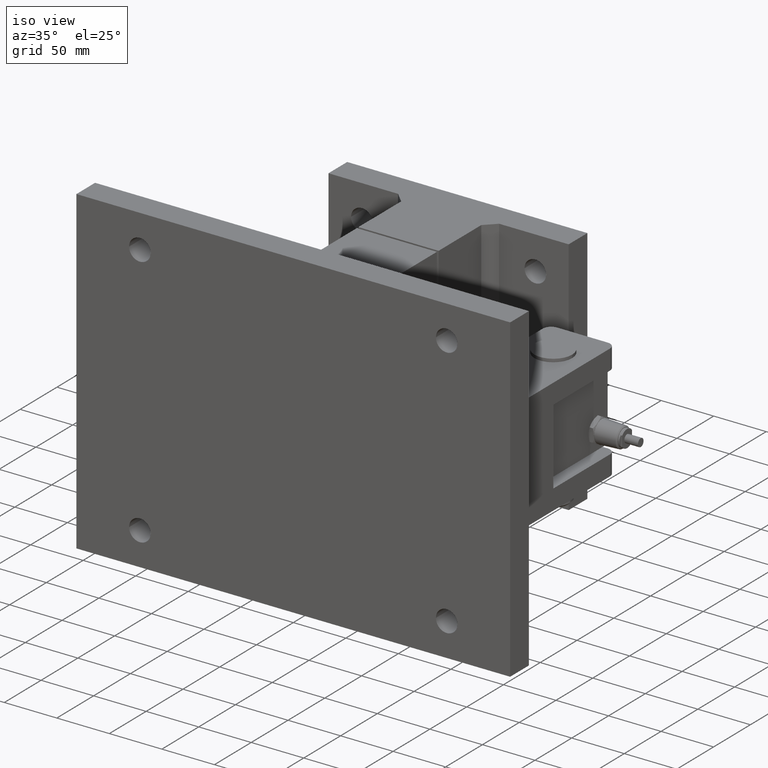
[diagram: clean part render]
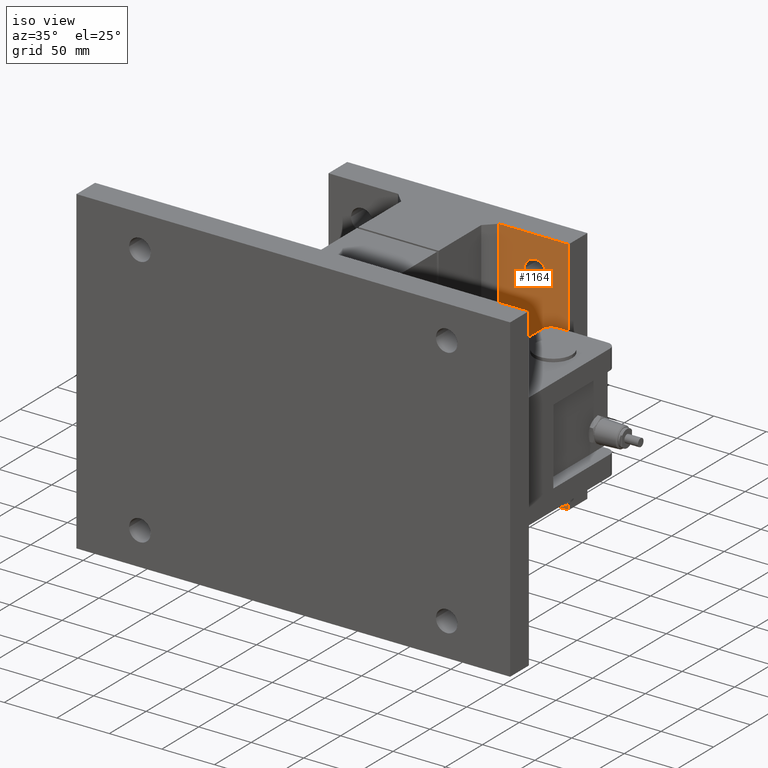
[diagram: same view with one face highlighted and labeled with its STEP entity id]
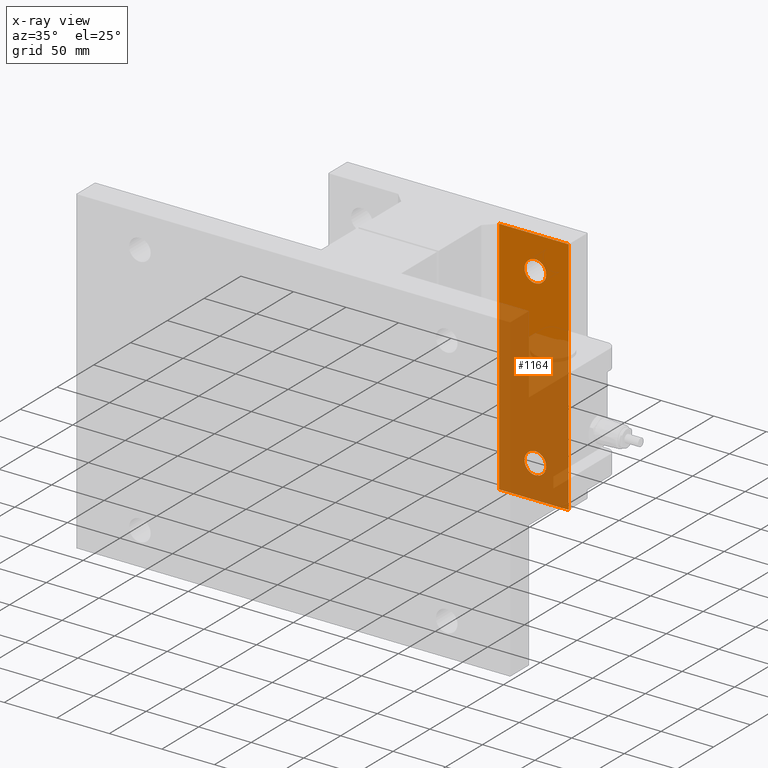
[diagram: x-ray of the same camera — body ghosted, the highlighted face saturated]
A machine part, iso view. The second image highlights one B-rep face of the part: STEP entity #1164.
The next image is the same camera in x-ray: the body ghosted, the highlighted face saturated — about 67% of this face is hidden behind the body in this view.
In plain terms, the highlighted planar face has unit normal (0, -1, 0).
Its self-contained STEP definition (entity closure, byte-faithful):
#245 = DIRECTION ( 'NONE',  ( 1.836970198721029934E-16, -1.000000000000000000, 0.000000000000000000 ) ) ;
#294 = DIRECTION ( 'NONE',  ( 1.000000000000000000, 2.428309327701567798E-16, -6.070773319253919496E-17 ) ) ;
#351 = VERTEX_POINT ( 'NONE', #5319 ) ;
#368 = CARTESIAN_POINT ( 'NONE',  ( 114.2999999999999829, 211.1000000000000227, 114.2999999999999687 ) ) ;
#372 = CARTESIAN_POINT ( 'NONE',  ( 114.3000000000000114, 211.1000000000000227, -114.3000000000000398 ) ) ;
#893 = CARTESIAN_POINT ( 'NONE',  ( 48.09999999999980957, 211.0999999999999943, 114.2999999999999687 ) ) ;
#904 = CARTESIAN_POINT ( 'NONE',  ( -5.276361129539065778E-14, 211.0999999999999943, -1.045924713129057850E-29 ) ) ;
#1055 = DIRECTION ( 'NONE',  ( -1.000000000000000000, -2.428309327701567798E-16, -6.070773319253919496E-17 ) ) ;
#1140 = CIRCLE ( 'NONE', #5781, 10.30000000000000426 ) ;
#1164 = ADVANCED_FACE ( 'NONE', ( #4442, #8587, #7859 ), #4387, .T. ) ;
#1299 = CARTESIAN_POINT ( 'NONE',  ( 114.3000000000000114, 211.1000000000000227, -114.3000000000000398 ) ) ;
#1369 = VERTEX_POINT ( 'NONE', #6431 ) ;
#1774 = EDGE_LOOP ( 'NONE', ( #8347, #5133 ) ) ;
#1838 = AXIS2_PLACEMENT_3D ( 'NONE', #904, #7170, #8865 ) ;
#2366 = CARTESIAN_POINT ( 'NONE',  ( 92.84999999999996589, 211.1000000000000227, 82.55000000000002558 ) ) ;
#2596 = ORIENTED_EDGE ( 'NONE', *, *, #6194, .T. ) ;
#2701 = VERTEX_POINT ( 'NONE', #3868 ) ;
#2752 = DIRECTION ( 'NONE',  ( 1.000000000000000000, 0.000000000000000000, 0.000000000000000000 ) ) ;
#3177 = AXIS2_PLACEMENT_3D ( 'NONE', #9542, #10557, #2752 ) ;
#3249 = DIRECTION ( 'NONE',  ( 0.000000000000000000, -4.422514643251830308E-32, -1.000000000000000000 ) ) ;
#3298 = EDGE_CURVE ( 'NONE', #351, #10400, #9003, .T. ) ;
#3826 = DIRECTION ( 'NONE',  ( 1.836970198721029934E-16, -1.000000000000000000, 0.000000000000000000 ) ) ;
#3868 = CARTESIAN_POINT ( 'NONE',  ( 48.09999999999980957, 211.0999999999999943, -114.3000000000000398 ) ) ;
#3881 = LINE ( 'NONE', #1299, #10411 ) ;
#3893 = VERTEX_POINT ( 'NONE', #9034 ) ;
#3896 = CIRCLE ( 'NONE', #3177, 10.30000000000000426 ) ;
#4099 = EDGE_CURVE ( 'NONE', #3893, #8159, #5481, .T. ) ;
#4387 = PLANE ( 'NONE',  #1838 ) ;
#4442 = FACE_BOUND ( 'NONE', #1774, .T. ) ;
#4509 = EDGE_LOOP ( 'NONE', ( #9607, #2596, #9139, #7247 ) ) ;
#4730 = AXIS2_PLACEMENT_3D ( 'NONE', #5241, #245, #6976 ) ;
#5133 = ORIENTED_EDGE ( 'NONE', *, *, #7027, .F. ) ;
#5241 = CARTESIAN_POINT ( 'NONE',  ( 82.54999999999992610, 211.1000000000000227, -82.54999999999995453 ) ) ;
#5319 = CARTESIAN_POINT ( 'NONE',  ( 72.24999999999995737, 211.1000000000000227, 82.55000000000002558 ) ) ;
#5442 = VECTOR ( 'NONE', #1055, 1000.000000000000000 ) ;
#5471 = VERTEX_POINT ( 'NONE', #7265 ) ;
#5481 = LINE ( 'NONE', #372, #7753 ) ;
#5763 = CARTESIAN_POINT ( 'NONE',  ( 48.09999999999980247, 211.0999999999999943, -114.3000000000000398 ) ) ;
#5781 = AXIS2_PLACEMENT_3D ( 'NONE', #7645, #5967, #7701 ) ;
#5967 = DIRECTION ( 'NONE',  ( 1.836970198721029934E-16, -1.000000000000000000, 0.000000000000000000 ) ) ;
#6194 = EDGE_CURVE ( 'NONE', #9849, #2701, #7445, .T. ) ;
#6210 = DIRECTION ( 'NONE',  ( -1.214154663850783653E-16, 0.000000000000000000, 1.000000000000000000 ) ) ;
#6431 = CARTESIAN_POINT ( 'NONE',  ( 92.84999999999993747, 211.1000000000000227, -82.54999999999995453 ) ) ;
#6936 = VECTOR ( 'NONE', #3249, 1000.000000000000000 ) ;
#6976 = DIRECTION ( 'NONE',  ( 1.000000000000000000, 0.000000000000000000, 0.000000000000000000 ) ) ;
#7027 = EDGE_CURVE ( 'NONE', #10400, #351, #3896, .T. ) ;
#7097 = ORIENTED_EDGE ( 'NONE', *, *, #8677, .F. ) ;
#7170 = DIRECTION ( 'NONE',  ( 2.428309327701567798E-16, -1.000000000000000000, 4.422514643251830308E-32 ) ) ;
#7185 = CARTESIAN_POINT ( 'NONE',  ( 82.54999999999995453, 211.1000000000000227, 82.55000000000002558 ) ) ;
#7247 = ORIENTED_EDGE ( 'NONE', *, *, #4099, .T. ) ;
#7265 = CARTESIAN_POINT ( 'NONE',  ( 72.24999999999992895, 211.1000000000000227, -82.54999999999995453 ) ) ;
#7445 = LINE ( 'NONE', #5763, #6936 ) ;
#7645 = CARTESIAN_POINT ( 'NONE',  ( 82.54999999999992610, 211.1000000000000227, -82.54999999999995453 ) ) ;
#7701 = DIRECTION ( 'NONE',  ( 1.000000000000000000, 0.000000000000000000, 0.000000000000000000 ) ) ;
#7753 = VECTOR ( 'NONE', #6210, 1000.000000000000000 ) ;
#7859 = FACE_OUTER_BOUND ( 'NONE', #4509, .T. ) ;
#7988 = DIRECTION ( 'NONE',  ( 1.000000000000000000, 0.000000000000000000, 0.000000000000000000 ) ) ;
#8062 = LINE ( 'NONE', #368, #5442 ) ;
#8159 = VERTEX_POINT ( 'NONE', #9878 ) ;
#8347 = ORIENTED_EDGE ( 'NONE', *, *, #3298, .F. ) ;
#8465 = AXIS2_PLACEMENT_3D ( 'NONE', #7185, #3826, #7988 ) ;
#8587 = FACE_BOUND ( 'NONE', #9645, .T. ) ;
#8603 = EDGE_CURVE ( 'NONE', #5471, #1369, #1140, .T. ) ;
#8677 = EDGE_CURVE ( 'NONE', #1369, #5471, #10276, .T. ) ;
#8865 = DIRECTION ( 'NONE',  ( 1.000000000000000000, 2.428309327701567798E-16, 0.000000000000000000 ) ) ;
#8919 = EDGE_CURVE ( 'NONE', #8159, #9849, #8062, .T. ) ;
#9003 = CIRCLE ( 'NONE', #8465, 10.30000000000000426 ) ;
#9034 = CARTESIAN_POINT ( 'NONE',  ( 114.3000000000000114, 211.1000000000000227, -114.3000000000000398 ) ) ;
#9139 = ORIENTED_EDGE ( 'NONE', *, *, #10637, .T. ) ;
#9542 = CARTESIAN_POINT ( 'NONE',  ( 82.54999999999995453, 211.1000000000000227, 82.55000000000002558 ) ) ;
#9607 = ORIENTED_EDGE ( 'NONE', *, *, #8919, .T. ) ;
#9645 = EDGE_LOOP ( 'NONE', ( #10774, #7097 ) ) ;
#9849 = VERTEX_POINT ( 'NONE', #893 ) ;
#9878 = CARTESIAN_POINT ( 'NONE',  ( 114.2999999999999829, 211.1000000000000227, 114.2999999999999687 ) ) ;
#10276 = CIRCLE ( 'NONE', #4730, 10.30000000000000426 ) ;
#10400 = VERTEX_POINT ( 'NONE', #2366 ) ;
#10411 = VECTOR ( 'NONE', #294, 1000.000000000000000 ) ;
#10557 = DIRECTION ( 'NONE',  ( 1.836970198721029934E-16, -1.000000000000000000, 0.000000000000000000 ) ) ;
#10637 = EDGE_CURVE ( 'NONE', #2701, #3893, #3881, .T. ) ;
#10774 = ORIENTED_EDGE ( 'NONE', *, *, #8603, .F. ) ;